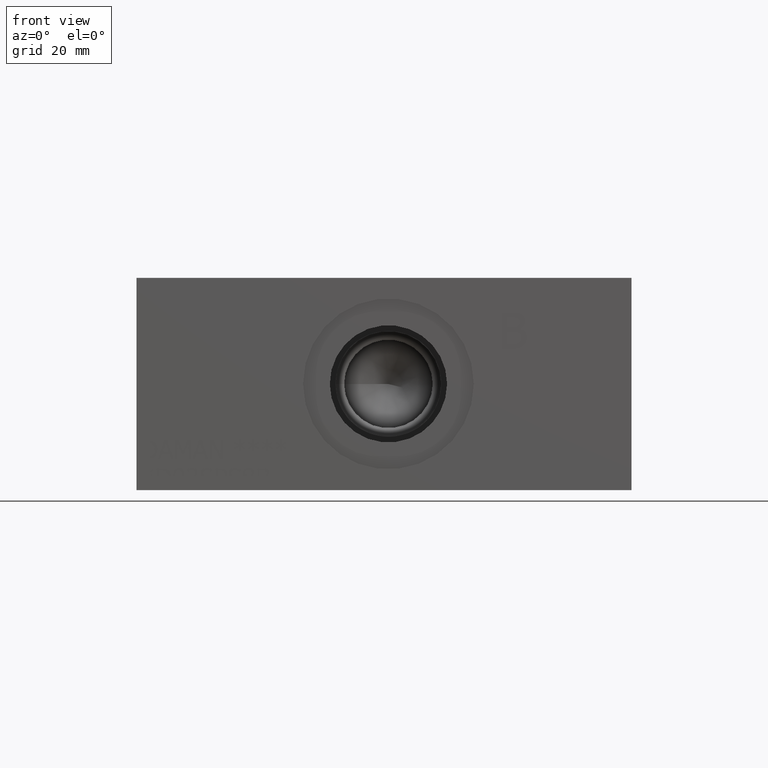
[diagram: clean part render]
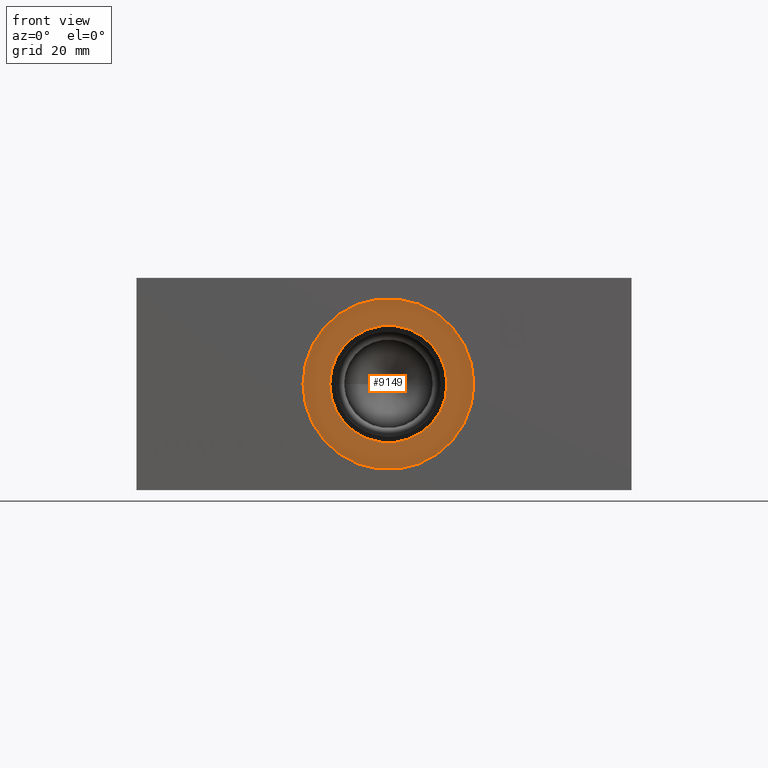
[diagram: same view with one face highlighted and labeled with its STEP entity id]
A machine part, front view. The second image highlights one B-rep face of the part: STEP entity #9149.
In plain terms, the highlighted planar face has unit normal (0, 1, 0).
Its self-contained STEP definition (entity closure, byte-faithful):
#73=CIRCLE('',#9498,15.3416);
#74=CIRCLE('',#9499,15.3416);
#75=CIRCLE('',#9501,10.5283);
#76=CIRCLE('',#9502,10.5283);
#224=FACE_BOUND('',#1437,.T.);
#509=PLANE('',#9500);
#930=FACE_OUTER_BOUND('',#1436,.T.);
#1436=EDGE_LOOP('',(#7861,#7862));
#1437=EDGE_LOOP('',(#7863,#7864));
#4286=VERTEX_POINT('',#15537);
#4287=VERTEX_POINT('',#15539);
#4288=VERTEX_POINT('',#15543);
#4289=VERTEX_POINT('',#15544);
#5519=EDGE_CURVE('',#4286,#4287,#73,.T.);
#5520=EDGE_CURVE('',#4287,#4286,#74,.T.);
#5521=EDGE_CURVE('',#4288,#4289,#75,.T.);
#5522=EDGE_CURVE('',#4289,#4288,#76,.T.);
#7861=ORIENTED_EDGE('',*,*,#5520,.F.);
#7862=ORIENTED_EDGE('',*,*,#5519,.F.);
#7863=ORIENTED_EDGE('',*,*,#5521,.T.);
#7864=ORIENTED_EDGE('',*,*,#5522,.T.);
#9149=ADVANCED_FACE('',(#930,#224),#509,.F.);
#9498=AXIS2_PLACEMENT_3D('',#15540,#11031,#11032);
#9499=AXIS2_PLACEMENT_3D('',#15541,#11033,#11034);
#9500=AXIS2_PLACEMENT_3D('',#15542,#11035,#11036);
#9501=AXIS2_PLACEMENT_3D('',#15545,#11037,#11038);
#9502=AXIS2_PLACEMENT_3D('',#15546,#11039,#11040);
#11031=DIRECTION('center_axis',(0.,1.,0.));
#11032=DIRECTION('ref_axis',(1.,0.,0.));
#11033=DIRECTION('center_axis',(0.,1.,0.));
#11034=DIRECTION('ref_axis',(1.,0.,0.));
#11035=DIRECTION('center_axis',(0.,1.,0.));
#11036=DIRECTION('ref_axis',(0.,0.,1.));
#11037=DIRECTION('center_axis',(0.,1.,0.));
#11038=DIRECTION('ref_axis',(1.,0.,0.));
#11039=DIRECTION('center_axis',(0.,1.,0.));
#11040=DIRECTION('ref_axis',(1.,0.,0.));
#15537=CARTESIAN_POINT('',(29.8958,0.7874,19.05));
#15539=CARTESIAN_POINT('',(60.579,0.7874,19.05));
#15540=CARTESIAN_POINT('Origin',(45.2374,0.7874,19.05));
#15541=CARTESIAN_POINT('Origin',(45.2374,0.7874,19.05));
#15542=CARTESIAN_POINT('Origin',(55.7657,0.7874,19.05));
#15543=CARTESIAN_POINT('',(55.7657,0.7874,19.05));
#15544=CARTESIAN_POINT('',(34.7091,0.787400000000001,19.05));
#15545=CARTESIAN_POINT('Origin',(45.2374,0.7874,19.05));
#15546=CARTESIAN_POINT('Origin',(45.2374,0.7874,19.05));